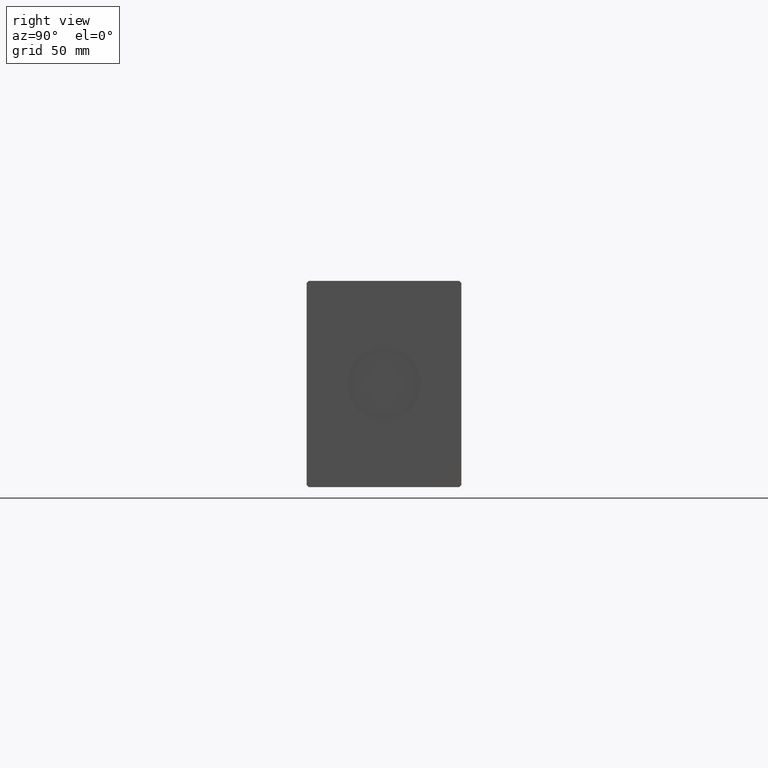
[diagram: clean part render]
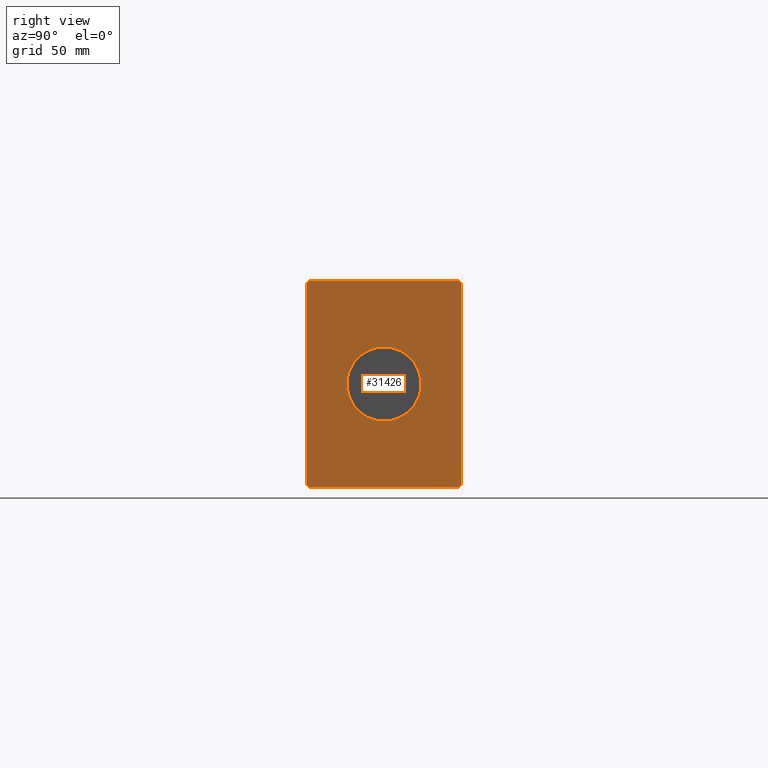
[diagram: same view with one face highlighted and labeled with its STEP entity id]
A machine part, right view. The second image highlights one B-rep face of the part: STEP entity #31426.
In plain terms, the highlighted planar face has unit normal (1, 0, 0).
Its self-contained STEP definition (entity closure, byte-faithful):
#1438 = CARTESIAN_POINT ( 'NONE',  ( 332.0000000000000000, 2.204364238465235428E-15, 18.00000000000000000 ) ) ;
#2009 = AXIS2_PLACEMENT_3D ( 'NONE', #9570, #37843, #6371 ) ;
#2130 = VECTOR ( 'NONE', #27351, 1000.000000000000114 ) ;
#3119 = EDGE_CURVE ( 'NONE', #17625, #5556, #20553, .T. ) ;
#3279 = CARTESIAN_POINT ( 'NONE',  ( 332.0000000000000000, 36.50000000000000711, 50.00000000000000000 ) ) ;
#3496 = VECTOR ( 'NONE', #35019, 1000.000000000000000 ) ;
#4087 = EDGE_CURVE ( 'NONE', #12123, #21961, #4844, .T. ) ;
#4224 = CARTESIAN_POINT ( 'NONE',  ( 332.0000000000000000, -36.50000000000000711, -50.00000000000000000 ) ) ;
#4844 = LINE ( 'NONE', #22444, #3496 ) ;
#5556 = VERTEX_POINT ( 'NONE', #17582 ) ;
#6033 = VECTOR ( 'NONE', #7681, 1000.000000000000114 ) ;
#6371 = DIRECTION ( 'NONE',  ( 0.000000000000000000, 0.000000000000000000, -1.000000000000000000 ) ) ;
#6736 = VERTEX_POINT ( 'NONE', #41554 ) ;
#7681 = DIRECTION ( 'NONE',  ( 0.000000000000000000, -0.7071067811865474617, 0.7071067811865474617 ) ) ;
#7809 = EDGE_CURVE ( 'NONE', #22884, #10219, #8086, .T. ) ;
#8086 = LINE ( 'NONE', #36989, #19862 ) ;
#8435 = LINE ( 'NONE', #21362, #11790 ) ;
#8537 = CARTESIAN_POINT ( 'NONE',  ( 332.0000000000000000, -36.50000000000000711, -50.00000000000000000 ) ) ;
#9154 = CARTESIAN_POINT ( 'NONE',  ( 332.0000000000000000, -37.50000000000001421, 48.99999999999998579 ) ) ;
#9277 = EDGE_CURVE ( 'NONE', #6736, #17625, #38573, .T. ) ;
#9363 = LINE ( 'NONE', #8537, #30425 ) ;
#9459 = DIRECTION ( 'NONE',  ( 0.000000000000000000, -1.000000000000000000, -1.901066822988281457E-16 ) ) ;
#9570 = CARTESIAN_POINT ( 'NONE',  ( 332.0000000000000000, 0.000000000000000000, 0.000000000000000000 ) ) ;
#9966 = CARTESIAN_POINT ( 'NONE',  ( 332.0000000000000000, 37.50000000000000711, 49.00000000000000000 ) ) ;
#10219 = VERTEX_POINT ( 'NONE', #4224 ) ;
#10751 = EDGE_CURVE ( 'NONE', #27533, #12123, #8435, .T. ) ;
#10789 = AXIS2_PLACEMENT_3D ( 'NONE', #19682, #25640, #29057 ) ;
#11368 = ORIENTED_EDGE ( 'NONE', *, *, #28516, .F. ) ;
#11699 = DIRECTION ( 'NONE',  ( 0.000000000000000000, 0.7071067811865500152, -0.7071067811865451302 ) ) ;
#11701 = CARTESIAN_POINT ( 'NONE',  ( 332.0000000000000000, -36.50000000000001421, 49.99999999999998579 ) ) ;
#11790 = VECTOR ( 'NONE', #18179, 1000.000000000000114 ) ;
#12123 = VERTEX_POINT ( 'NONE', #13647 ) ;
#12649 = DIRECTION ( 'NONE',  ( 0.000000000000000000, 0.000000000000000000, -1.000000000000000000 ) ) ;
#13429 = ORIENTED_EDGE ( 'NONE', *, *, #10751, .T. ) ;
#13647 = CARTESIAN_POINT ( 'NONE',  ( 332.0000000000000000, 37.50000000000000711, -49.00000000000000000 ) ) ;
#15342 = CARTESIAN_POINT ( 'NONE',  ( 332.0000000000000000, -37.50000000000001421, -49.00000000000000000 ) ) ;
#16029 = ORIENTED_EDGE ( 'NONE', *, *, #9277, .T. ) ;
#16760 = ORIENTED_EDGE ( 'NONE', *, *, #28123, .T. ) ;
#17582 = CARTESIAN_POINT ( 'NONE',  ( 332.0000000000000000, -37.50000000000001421, 48.99999999999998579 ) ) ;
#17625 = VERTEX_POINT ( 'NONE', #11701 ) ;
#17877 = VECTOR ( 'NONE', #9459, 1000.000000000000000 ) ;
#18179 = DIRECTION ( 'NONE',  ( 0.000000000000000000, 0.7071067811865474617, 0.7071067811865474617 ) ) ;
#18239 = CIRCLE ( 'NONE', #10789, 18.00000000000000000 ) ;
#19682 = CARTESIAN_POINT ( 'NONE',  ( 332.0000000000000000, 0.000000000000000000, 0.000000000000000000 ) ) ;
#19862 = VECTOR ( 'NONE', #11699, 1000.000000000000114 ) ;
#20272 = ORIENTED_EDGE ( 'NONE', *, *, #7809, .T. ) ;
#20553 = LINE ( 'NONE', #30333, #2130 ) ;
#21038 = ORIENTED_EDGE ( 'NONE', *, *, #39176, .F. ) ;
#21050 = CIRCLE ( 'NONE', #40758, 18.00000000000000000 ) ;
#21244 = LINE ( 'NONE', #9154, #41977 ) ;
#21362 = CARTESIAN_POINT ( 'NONE',  ( 332.0000000000000000, 36.50000000000000711, -50.00000000000000000 ) ) ;
#21664 = FACE_OUTER_BOUND ( 'NONE', #25857, .T. ) ;
#21668 = DIRECTION ( 'NONE',  ( 0.000000000000000000, 1.000000000000000000, 0.000000000000000000 ) ) ;
#21961 = VERTEX_POINT ( 'NONE', #9966 ) ;
#22444 = CARTESIAN_POINT ( 'NONE',  ( 332.0000000000000000, 37.50000000000000711, -49.00000000000000000 ) ) ;
#22884 = VERTEX_POINT ( 'NONE', #15342 ) ;
#24675 = CARTESIAN_POINT ( 'NONE',  ( 332.0000000000000000, 0.000000000000000000, -18.00000000000000000 ) ) ;
#24856 = DIRECTION ( 'NONE',  ( 0.000000000000000000, 0.000000000000000000, -1.000000000000000000 ) ) ;
#25477 = CARTESIAN_POINT ( 'NONE',  ( 332.0000000000000000, 36.50000000000000711, -50.00000000000000000 ) ) ;
#25640 = DIRECTION ( 'NONE',  ( 1.000000000000000000, 0.000000000000000000, 0.000000000000000000 ) ) ;
#25857 = EDGE_LOOP ( 'NONE', ( #16760, #16029, #33658, #33530, #20272, #36839, #13429, #26121 ) ) ;
#26047 = EDGE_LOOP ( 'NONE', ( #11368, #21038 ) ) ;
#26121 = ORIENTED_EDGE ( 'NONE', *, *, #4087, .T. ) ;
#27351 = DIRECTION ( 'NONE',  ( 0.000000000000000000, -0.7071067811865474617, -0.7071067811865474617 ) ) ;
#27383 = EDGE_CURVE ( 'NONE', #5556, #22884, #21244, .T. ) ;
#27533 = VERTEX_POINT ( 'NONE', #25477 ) ;
#28123 = EDGE_CURVE ( 'NONE', #21961, #6736, #30189, .T. ) ;
#28219 = EDGE_CURVE ( 'NONE', #10219, #27533, #9363, .T. ) ;
#28371 = DIRECTION ( 'NONE',  ( 1.000000000000000000, 0.000000000000000000, 0.000000000000000000 ) ) ;
#28516 = EDGE_CURVE ( 'NONE', #32780, #31622, #18239, .T. ) ;
#29057 = DIRECTION ( 'NONE',  ( 0.000000000000000000, 0.000000000000000000, -1.000000000000000000 ) ) ;
#30189 = LINE ( 'NONE', #39777, #6033 ) ;
#30333 = CARTESIAN_POINT ( 'NONE',  ( 332.0000000000000000, -36.50000000000001421, 49.99999999999998579 ) ) ;
#30425 = VECTOR ( 'NONE', #21668, 1000.000000000000000 ) ;
#31426 = ADVANCED_FACE ( 'NONE', ( #38679, #21664 ), #38270, .T. ) ;
#31622 = VERTEX_POINT ( 'NONE', #1438 ) ;
#32780 = VERTEX_POINT ( 'NONE', #24675 ) ;
#33530 = ORIENTED_EDGE ( 'NONE', *, *, #27383, .T. ) ;
#33658 = ORIENTED_EDGE ( 'NONE', *, *, #3119, .T. ) ;
#35019 = DIRECTION ( 'NONE',  ( 0.000000000000000000, 0.000000000000000000, 1.000000000000000000 ) ) ;
#36839 = ORIENTED_EDGE ( 'NONE', *, *, #28219, .T. ) ;
#36989 = CARTESIAN_POINT ( 'NONE',  ( 332.0000000000000000, -37.50000000000001421, -49.00000000000000000 ) ) ;
#37843 = DIRECTION ( 'NONE',  ( 1.000000000000000000, 0.000000000000000000, 0.000000000000000000 ) ) ;
#38270 = PLANE ( 'NONE',  #2009 ) ;
#38573 = LINE ( 'NONE', #3279, #17877 ) ;
#38679 = FACE_BOUND ( 'NONE', #26047, .T. ) ;
#39176 = EDGE_CURVE ( 'NONE', #31622, #32780, #21050, .T. ) ;
#39777 = CARTESIAN_POINT ( 'NONE',  ( 332.0000000000000000, 37.50000000000000711, 49.00000000000000000 ) ) ;
#40758 = AXIS2_PLACEMENT_3D ( 'NONE', #41770, #28371, #12649 ) ;
#41554 = CARTESIAN_POINT ( 'NONE',  ( 332.0000000000000000, 36.50000000000000711, 50.00000000000000000 ) ) ;
#41770 = CARTESIAN_POINT ( 'NONE',  ( 332.0000000000000000, 0.000000000000000000, 0.000000000000000000 ) ) ;
#41977 = VECTOR ( 'NONE', #24856, 1000.000000000000000 ) ;